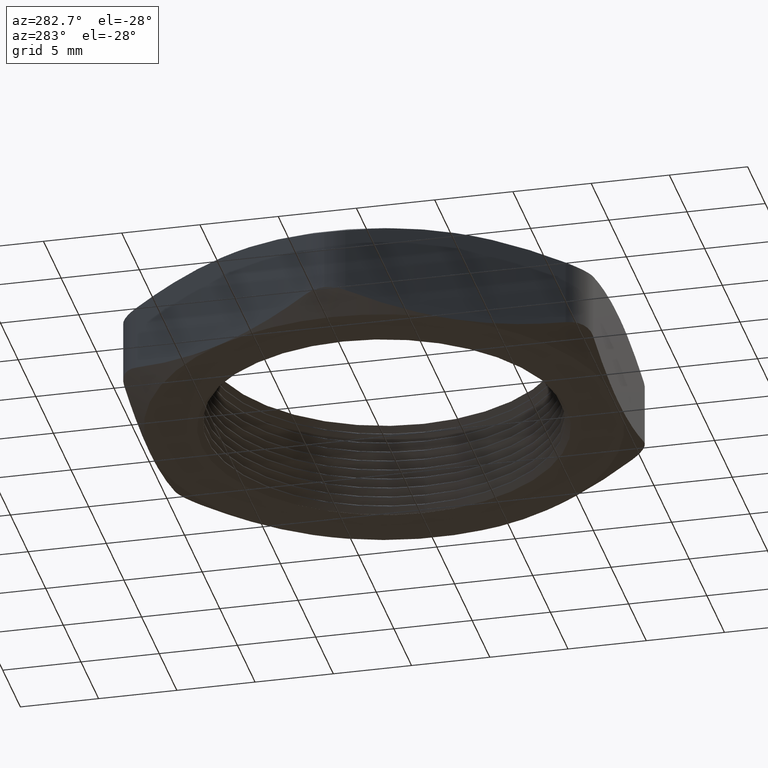
[diagram: clean part render]
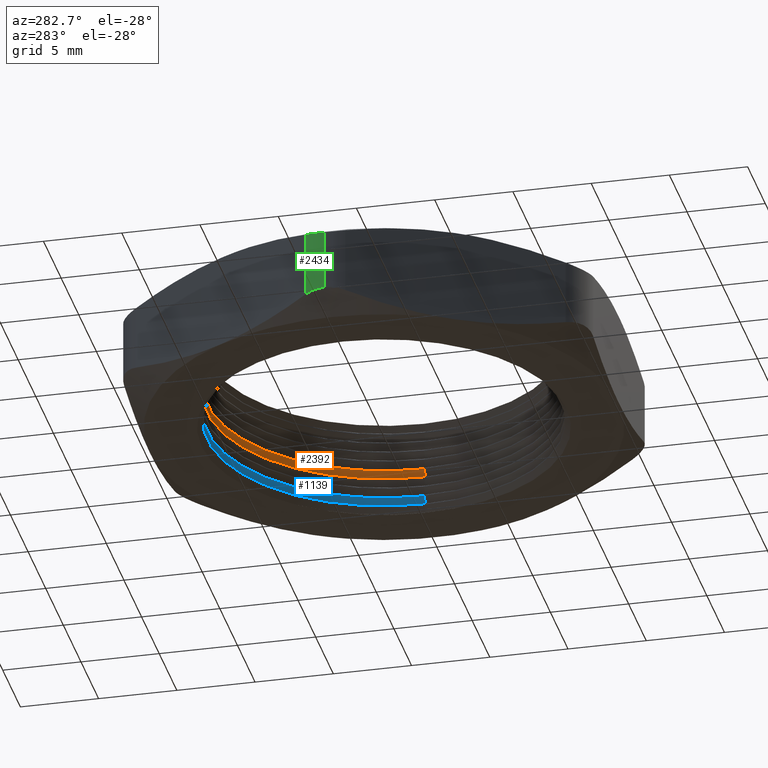
[diagram: same view with three faces highlighted in distinct colors, each labeled with its STEP entity id]
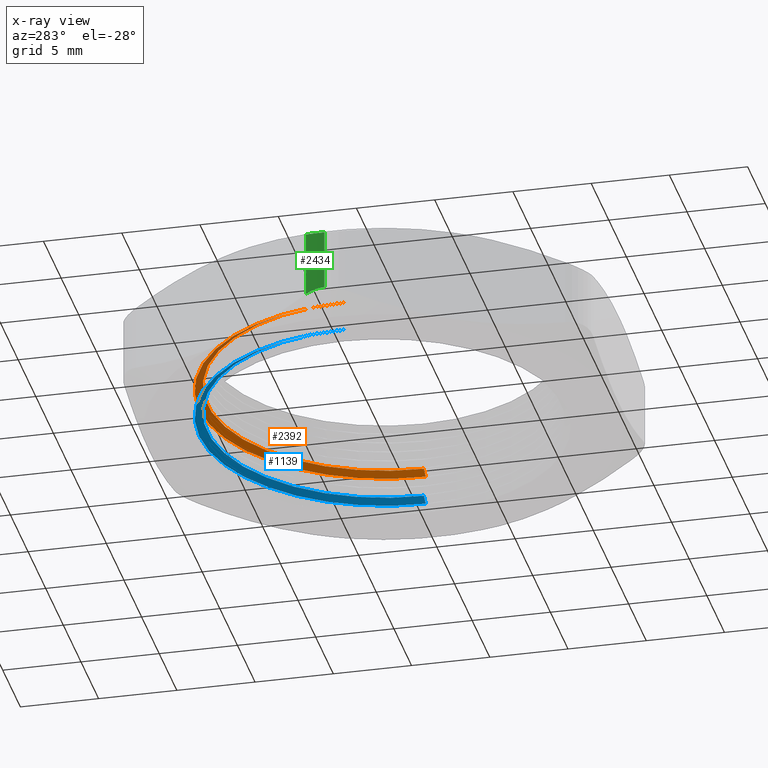
[diagram: x-ray of the same camera — body ghosted, the three highlighted faces saturated]
A machine part, auxiliary view with three faces highlighted in distinct colors.
The next image is the same camera in x-ray (body ghosted, the three faces saturated) — at least one of them is partly hidden behind the body in this view.
Their STEP definitions:

[orange] entity #2392 — the highlighted conical surface has half-angle 60 deg.
#105 = DIRECTION ( 'NONE',  ( -0.8660254037844441500, 0.0000000000000000000, -0.4999999999999902300 ) ) ;
#106 = VECTOR ( 'NONE', #105, 39.37007874015748100 ) ;
#107 = CARTESIAN_POINT ( 'NONE',  ( -0.4650000000000000200, 0.0000000000000000000, 0.1034529946162077700 ) ) ;
#113 = LINE ( 'NONE', #107, #106 ) ;
#138 = CARTESIAN_POINT ( 'NONE',  ( 0.4450000000000000100, 5.449678256205721400E-017, 0.1149999999999999900 ) ) ;
#139 = CARTESIAN_POINT ( 'NONE',  ( -0.4450000000000000100, 0.0000000000000000000, 0.1149999999999999900 ) ) ;
#230 = CARTESIAN_POINT ( 'NONE',  ( 0.4650000000000000200, 5.694607616035193400E-017, 0.1034529946162077700 ) ) ;
#231 = CARTESIAN_POINT ( 'NONE',  ( -0.4650000000000000200, 0.0000000000000000000, 0.1034529946162077700 ) ) ;
#540 = DIRECTION ( 'NONE',  ( 0.8660254037844441500, 1.060575238724913900E-016, -0.4999999999999902300 ) ) ;
#541 = VECTOR ( 'NONE', #540, 39.37007874015748100 ) ;
#542 = CARTESIAN_POINT ( 'NONE',  ( 0.4650000000000000200, 5.694607616035193400E-017, 0.1034529946162077700 ) ) ;
#543 = LINE ( 'NONE', #542, #541 ) ;
#600 = CIRCLE ( 'NONE', #675, 0.4450000000000000100 ) ;
#662 = DIRECTION ( 'NONE',  ( 1.000000000000000000, 0.0000000000000000000, 0.0000000000000000000 ) ) ;
#673 = DIRECTION ( 'NONE',  ( 0.0000000000000000000, 0.0000000000000000000, 1.000000000000000000 ) ) ;
#674 = CARTESIAN_POINT ( 'NONE',  ( 0.0000000000000000000, 0.0000000000000000000, 0.1149999999999999900 ) ) ;
#675 = AXIS2_PLACEMENT_3D ( 'NONE', #674, #673, #662 ) ;
#1061 = DIRECTION ( 'NONE',  ( -1.000000000000000000, 0.0000000000000000000, 0.0000000000000000000 ) ) ;
#1062 = DIRECTION ( 'NONE',  ( 0.0000000000000000000, 0.0000000000000000000, -1.000000000000000000 ) ) ;
#1063 = CARTESIAN_POINT ( 'NONE',  ( 0.0000000000000000000, 0.0000000000000000000, 0.1034529946162077700 ) ) ;
#1064 = AXIS2_PLACEMENT_3D ( 'NONE', #1063, #1062, #1061 ) ;
#1066 = CONICAL_SURFACE ( 'NONE', #1064, 0.4650000000000000200, 1.047197551196609000 ) ;
#1067 = FACE_OUTER_BOUND ( 'NONE', #2393, .T. ) ;
#1131 = ORIENTED_EDGE ( 'NONE', *, *, #1980, .T. ) ;
#1266 = CARTESIAN_POINT ( 'NONE',  ( 0.0000000000000000000, 0.0000000000000000000, 0.1034529946162077700 ) ) ;
#1319 = DIRECTION ( 'NONE',  ( 1.000000000000000000, 0.0000000000000000000, 0.0000000000000000000 ) ) ;
#1320 = DIRECTION ( 'NONE',  ( 0.0000000000000000000, 0.0000000000000000000, 1.000000000000000000 ) ) ;
#1321 = AXIS2_PLACEMENT_3D ( 'NONE', #1266, #1320, #1319 ) ;
#1322 = CIRCLE ( 'NONE', #1321, 0.4650000000000000200 ) ;
#1883 = VERTEX_POINT ( 'NONE', #139 ) ;
#1884 = VERTEX_POINT ( 'NONE', #138 ) ;
#1942 = VERTEX_POINT ( 'NONE', #231 ) ;
#1943 = VERTEX_POINT ( 'NONE', #230 ) ;
#1980 = EDGE_CURVE ( 'NONE', #1883, #1942, #113, .T. ) ;
#1998 = EDGE_CURVE ( 'NONE', #1884, #1943, #543, .T. ) ;
#2145 = EDGE_CURVE ( 'NONE', #1884, #1883, #600, .T. ) ;
#2392 = ADVANCED_FACE ( 'NONE', ( #1067 ), #1066, .F. ) ;
#2393 = EDGE_LOOP ( 'NONE', ( #2482, #2480, #1131, #2498 ) ) ;
#2480 = ORIENTED_EDGE ( 'NONE', *, *, #2145, .T. ) ;
#2481 = EDGE_CURVE ( 'NONE', #1943, #1942, #1322, .T. ) ;
#2482 = ORIENTED_EDGE ( 'NONE', *, *, #1998, .F. ) ;
#2498 = ORIENTED_EDGE ( 'NONE', *, *, #2481, .F. ) ;

[blue] entity #1139 — the highlighted conical surface has half-angle 60 deg.
#163 = CARTESIAN_POINT ( 'NONE',  ( 0.4650000000000000200, 5.694607616035193400E-017, 0.02845299461620777100 ) ) ;
#169 = CARTESIAN_POINT ( 'NONE',  ( -0.4650000000000000200, 0.0000000000000000000, 0.02845299461620777100 ) ) ;
#435 = DIRECTION ( 'NONE',  ( 1.000000000000000000, 0.0000000000000000000, 0.0000000000000000000 ) ) ;
#436 = DIRECTION ( 'NONE',  ( 0.0000000000000000000, 0.0000000000000000000, 1.000000000000000000 ) ) ;
#437 = CARTESIAN_POINT ( 'NONE',  ( 0.0000000000000000000, 0.0000000000000000000, 0.03999999999999998000 ) ) ;
#438 = AXIS2_PLACEMENT_3D ( 'NONE', #437, #436, #435 ) ;
#442 = CIRCLE ( 'NONE', #438, 0.4450000000000000100 ) ;
#1134 = EDGE_LOOP ( 'NONE', ( #2178, #1164, #1152, #1166 ) ) ;
#1139 = ADVANCED_FACE ( 'NONE', ( #1504 ), #1503, .F. ) ;
#1147 = EDGE_CURVE ( 'NONE', #1934, #1931, #1531, .T. ) ;
#1152 = ORIENTED_EDGE ( 'NONE', *, *, #1819, .T. ) ;
#1164 = ORIENTED_EDGE ( 'NONE', *, *, #2105, .T. ) ;
#1166 = ORIENTED_EDGE ( 'NONE', *, *, #1147, .F. ) ;
#1503 = CONICAL_SURFACE ( 'NONE', #1509, 0.4650000000000000200, 1.047197551196609000 ) ;
#1504 = FACE_OUTER_BOUND ( 'NONE', #1134, .T. ) ;
#1506 = DIRECTION ( 'NONE',  ( -1.000000000000000000, 0.0000000000000000000, 0.0000000000000000000 ) ) ;
#1507 = DIRECTION ( 'NONE',  ( 0.0000000000000000000, 0.0000000000000000000, -1.000000000000000000 ) ) ;
#1508 = CARTESIAN_POINT ( 'NONE',  ( 0.0000000000000000000, 0.0000000000000000000, 0.02845299461620777100 ) ) ;
#1509 = AXIS2_PLACEMENT_3D ( 'NONE', #1508, #1507, #1506 ) ;
#1526 = DIRECTION ( 'NONE',  ( 1.000000000000000000, 0.0000000000000000000, 0.0000000000000000000 ) ) ;
#1527 = DIRECTION ( 'NONE',  ( 0.0000000000000000000, 0.0000000000000000000, 1.000000000000000000 ) ) ;
#1528 = CARTESIAN_POINT ( 'NONE',  ( 0.0000000000000000000, 0.0000000000000000000, 0.02845299461620777100 ) ) ;
#1530 = AXIS2_PLACEMENT_3D ( 'NONE', #1528, #1527, #1526 ) ;
#1531 = CIRCLE ( 'NONE', #1530, 0.4650000000000000200 ) ;
#1652 = DIRECTION ( 'NONE',  ( -0.8660254037844441500, 0.0000000000000000000, -0.4999999999999902300 ) ) ;
#1653 = VECTOR ( 'NONE', #1652, 39.37007874015748100 ) ;
#1654 = CARTESIAN_POINT ( 'NONE',  ( -0.4650000000000000200, 0.0000000000000000000, 0.02845299461620777100 ) ) ;
#1655 = LINE ( 'NONE', #1654, #1653 ) ;
#1656 = DIRECTION ( 'NONE',  ( 0.8660254037844441500, 1.060575238724913900E-016, -0.4999999999999902300 ) ) ;
#1657 = VECTOR ( 'NONE', #1656, 39.37007874015748100 ) ;
#1658 = CARTESIAN_POINT ( 'NONE',  ( 0.4650000000000000200, 5.694607616035193400E-017, 0.02845299461620777100 ) ) ;
#1659 = LINE ( 'NONE', #1658, #1657 ) ;
#1660 = CARTESIAN_POINT ( 'NONE',  ( 0.4450000000000000100, 5.449678256205721400E-017, 0.03999999999999998000 ) ) ;
#1661 = CARTESIAN_POINT ( 'NONE',  ( -0.4450000000000000100, 0.0000000000000000000, 0.03999999999999998000 ) ) ;
#1813 = VERTEX_POINT ( 'NONE', #1661 ) ;
#1814 = VERTEX_POINT ( 'NONE', #1660 ) ;
#1816 = EDGE_CURVE ( 'NONE', #1814, #1934, #1659, .T. ) ;
#1819 = EDGE_CURVE ( 'NONE', #1813, #1931, #1655, .T. ) ;
#1931 = VERTEX_POINT ( 'NONE', #169 ) ;
#1934 = VERTEX_POINT ( 'NONE', #163 ) ;
#2105 = EDGE_CURVE ( 'NONE', #1814, #1813, #442, .T. ) ;
#2178 = ORIENTED_EDGE ( 'NONE', *, *, #1816, .F. ) ;

[green] entity #2434 — the highlighted cylindrical surface (partial cylindrical patch) has radius 2.54 mm, axis along (0, 0, -1).
#187 = CARTESIAN_POINT ( 'NONE',  ( -0.6524058041842769600, 0.05000000000000007900, 0.03713458295164549800 ) ) ;
#188 = CARTESIAN_POINT ( 'NONE',  ( -0.6567127633698604000, 0.04254012786444495000, 0.03928481859234798200 ) ) ;
#189 = CARTESIAN_POINT ( 'NONE',  ( -0.6600928457595448600, 0.03442354967998577400, 0.04095464447663955300 ) ) ;
#190 = CARTESIAN_POINT ( 'NONE',  ( -0.6646172118404192200, 0.01764397096444931700, 0.04318429355461989700 ) ) ;
#191 = CARTESIAN_POINT ( 'NONE',  ( -0.6658032638058329900, 0.008769439487398212500, 0.04376503476374974500 ) ) ;
#192 = CARTESIAN_POINT ( 'NONE',  ( -0.6658032638058331000, -2.492365655275047400E-025, 0.04376503476374972400 ) ) ;
#193 = CARTESIAN_POINT ( 'NONE',  ( -0.6524058041842769600, 0.05000000000000007900, 0.03713458295164549800 ) ) ;
#194 = B_SPLINE_CURVE_WITH_KNOTS ( 'NONE', 3,
 ( #192, #191, #190, #189, #188, #187 ),
 .UNSPECIFIED., .F., .F.,
 ( 4, 2, 4 ),
 ( 0.001338685962643769900, 0.002005935094217667900, 0.002673184225791566300 ),
 .UNSPECIFIED. ) ;
#510 = CARTESIAN_POINT ( 'NONE',  ( -0.6658032638058331000, 6.829620009085090600E-017, 0.1962349652362502500 ) ) ;
#512 = DIRECTION ( 'NONE',  ( 0.0000000000000000000, 0.0000000000000000000, -1.000000000000000000 ) ) ;
#513 = VECTOR ( 'NONE', #512, 39.37007874015748100 ) ;
#514 = CARTESIAN_POINT ( 'NONE',  ( -0.6658032638058331000, 6.829619984160658000E-017, 0.2399999999999999900 ) ) ;
#515 = LINE ( 'NONE', #514, #513 ) ;
#532 = CARTESIAN_POINT ( 'NONE',  ( -0.6658032638058331000, -2.492365655275047400E-025, 0.04376503476374972400 ) ) ;
#688 = DIRECTION ( 'NONE',  ( 0.0000000000000000000, 0.0000000000000000000, 1.000000000000000000 ) ) ;
#689 = VECTOR ( 'NONE', #688, 39.37007874015748100 ) ;
#690 = CARTESIAN_POINT ( 'NONE',  ( -0.6524058041842769600, 0.05000000000000007900, 0.2399999999999999900 ) ) ;
#691 = LINE ( 'NONE', #690, #689 ) ;
#824 = CARTESIAN_POINT ( 'NONE',  ( -0.6658032638058331000, 6.829620009085090600E-017, 0.1962349652362502500 ) ) ;
#825 = CARTESIAN_POINT ( 'NONE',  ( -0.6658032638058332100, 0.008796958277295182200, 0.1962349652362503100 ) ) ;
#826 = CARTESIAN_POINT ( 'NONE',  ( -0.6646291145683206300, 0.01761796163042864500, 0.1968098203050945000 ) ) ;
#827 = CARTESIAN_POINT ( 'NONE',  ( -0.6600528044583208200, 0.03455380496755458600, 0.1990651087361324500 ) ) ;
#828 = CARTESIAN_POINT ( 'NONE',  ( -0.6567251149565681600, 0.04251873428871223700, 0.2007090149173710600 ) ) ;
#829 = CARTESIAN_POINT ( 'NONE',  ( -0.6524058041842769600, 0.05000000000000016900, 0.2028654170483545100 ) ) ;
#859 = CARTESIAN_POINT ( 'NONE',  ( -0.6524058041842769600, 0.05000000000000016900, 0.2028654170483545100 ) ) ;
#1006 = B_SPLINE_CURVE_WITH_KNOTS ( 'NONE', 3,
 ( #829, #828, #827, #826, #825, #824 ),
 .UNSPECIFIED., .F., .F.,
 ( 4, 2, 4 ),
 ( 2.742838647325547800E-018, 0.0006693429813218875400, 0.001338685962643772500 ),
 .UNSPECIFIED. ) ;
#1215 = DIRECTION ( 'NONE',  ( -1.000000000000000000, 0.0000000000000000000, 0.0000000000000000000 ) ) ;
#1216 = DIRECTION ( 'NONE',  ( 0.0000000000000000000, 0.0000000000000000000, -1.000000000000000000 ) ) ;
#1227 = AXIS2_PLACEMENT_3D ( 'NONE', #1228, #1216, #1215 ) ;
#1228 = CARTESIAN_POINT ( 'NONE',  ( -0.5658032638058331200, 6.829619984160658000E-017, 0.2399999999999999900 ) ) ;
#1230 = CYLINDRICAL_SURFACE ( 'NONE', #1227, 0.09999999999999996400 ) ;
#1231 = FACE_OUTER_BOUND ( 'NONE', #2401, .T. ) ;
#1961 = EDGE_CURVE ( 'NONE', #2064, #1962, #194, .T. ) ;
#1962 = VERTEX_POINT ( 'NONE', #193 ) ;
#2064 = VERTEX_POINT ( 'NONE', #532 ) ;
#2070 = EDGE_CURVE ( 'NONE', #2073, #2064, #515, .T. ) ;
#2073 = VERTEX_POINT ( 'NONE', #510 ) ;
#2206 = EDGE_CURVE ( 'NONE', #1962, #2303, #691, .T. ) ;
#2220 = ORIENTED_EDGE ( 'NONE', *, *, #1961, .F. ) ;
#2244 = EDGE_CURVE ( 'NONE', #2303, #2073, #1006, .T. ) ;
#2303 = VERTEX_POINT ( 'NONE', #859 ) ;
#2384 = ORIENTED_EDGE ( 'NONE', *, *, #2244, .F. ) ;
#2401 = EDGE_LOOP ( 'NONE', ( #2416, #2384, #2426, #2220 ) ) ;
#2416 = ORIENTED_EDGE ( 'NONE', *, *, #2070, .F. ) ;
#2426 = ORIENTED_EDGE ( 'NONE', *, *, #2206, .F. ) ;
#2434 = ADVANCED_FACE ( 'NONE', ( #1231 ), #1230, .T. ) ;